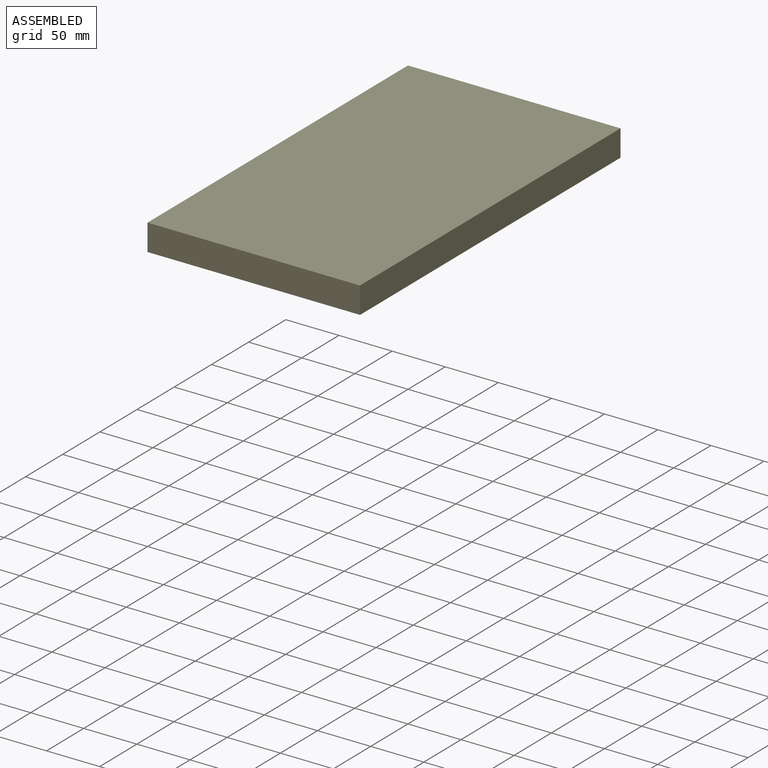
[diagram: assembled view]
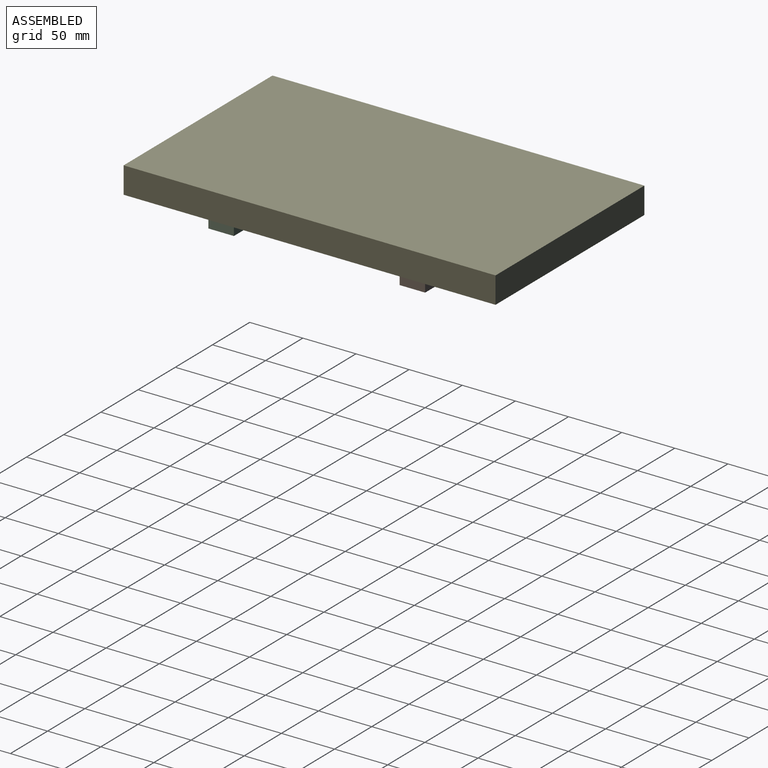
[diagram: assembled view, second angle]
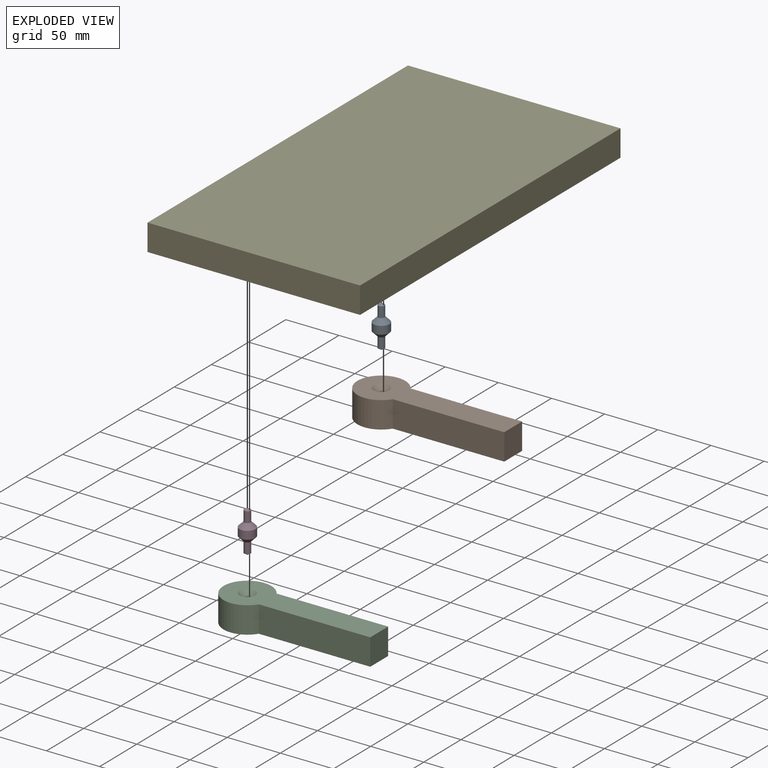
[diagram: exploded view]
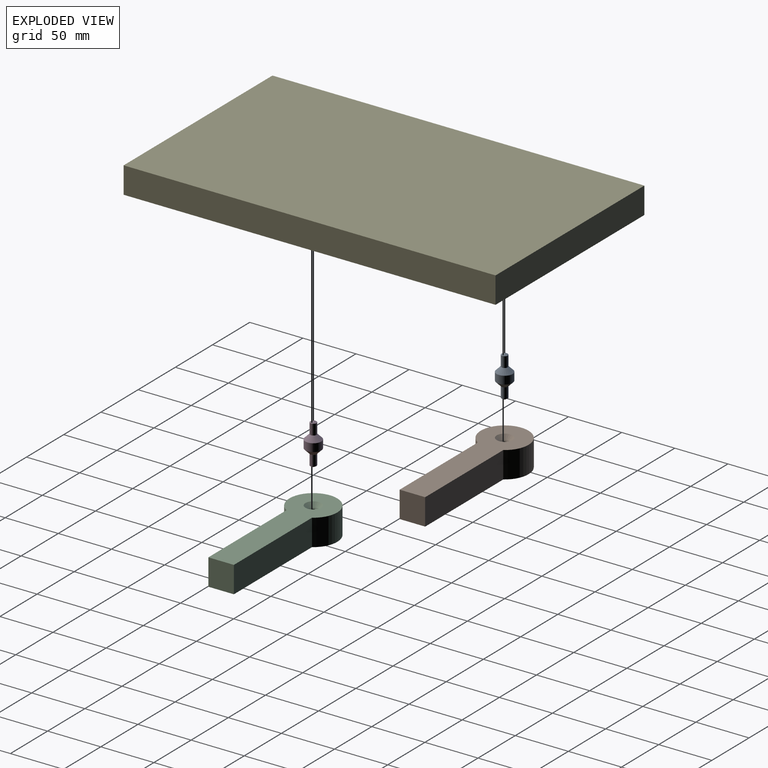
[diagram: exploded view, second angle]
ASSEMBLY  parts=5 mates=6
PART A: 7 faces, bbox 15x15x40.1 mm
  f0: cone r=0mm half-angle=59deg, axis (0,0,1), area 33mm2, adj f1
  f1: cylinder r=3mm len=10mm, axis (0,0,1), area 188.5mm2, adj f0,f2
  f2: cone r=3mm half-angle=45deg, axis (0,0,1), area 209.9mm2, adj f1,f3
  f3: cylinder r=7.5mm len=15mm, axis (0,0,-1), area 353.4mm2, adj f2,f6
  f4: cone r=0mm half-angle=59deg, axis (0,0,-1), area 33mm2, adj f5
  f5: cylinder r=3mm len=10mm, axis (0,0,-1), area 188.5mm2, adj f4,f6
  f6: cone r=3mm half-angle=45deg, axis (0,0,-1), area 209.9mm2, adj f3,f5
PART B: 9 faces, bbox 146.5x45x25 mm
  f0: cylinder r=22.5mm len=45mm, axis (0,0,-1), area 2901.4mm2, adj f1,f3,f4,f5
  f1: plane 104.93x25mm, normal (0,-1,0), area 2623.4mm2, adj f0,f2,f4,f5
  f2: plane 25x24mm, normal (1,0,0), area 600mm2, adj f1,f3,f4,f5
  f3: plane 105x25mm, normal (0,1,0), area 2625mm2, adj f0,f2,f4,f5
  f4: plane 146.5x45mm, normal (0,0,1), area 3876.5mm2, adj f0,f1,f2,f3,f8
  f5: plane 146.5x45mm, normal (0,0,-1), area 4053.3mm2, adj f0,f1,f2,f3
  f6: cone r=0mm half-angle=59deg, axis (0,0,1), area 33mm2, adj f7
  f7: cylinder r=3mm len=10mm, axis (0,0,1), area 188.5mm2, adj f6,f8
  f8: cone r=3mm half-angle=45deg, axis (0,0,1), area 209.9mm2, adj f4,f7
PART C: same geometry as B
PART D: same geometry as A
PART E: 12 faces, bbox 200x350x25 mm
  f0: plane 200x25mm, normal (0,1,0), area 5000mm2, adj f1,f3,f4,f5
  f1: plane 350x25mm, normal (-1,0,0), area 8750mm2, adj f0,f2,f4,f5
  f2: plane 200x25mm, normal (0,-1,0), area 5000mm2, adj f1,f3,f4,f5
  f3: plane 350x25mm, normal (1,0,0), area 8750mm2, adj f0,f2,f4,f5
  f4: plane 350x200mm, normal (0,0,1), area 70000mm2, adj f0,f1,f2,f3
  f5: plane 350x200mm, normal (0,0,-1), area 69646.6mm2, adj f0,f1,f2,f3,f8,f11
  f6: cone r=0mm half-angle=59deg, axis (0,0,-1), area 33mm2, adj f7
  f7: cylinder r=3mm len=10mm, axis (0,0,-1), area 188.5mm2, adj f6,f8
  f8: cone r=3mm half-angle=45deg, axis (0,0,-1), area 209.9mm2, adj f5,f7
  f9: cone r=0mm half-angle=59deg, axis (0,0,-1), area 33mm2, adj f10
  f10: cylinder r=3mm len=10mm, axis (0,0,-1), area 188.5mm2, adj f9,f11
  f11: cone r=3mm half-angle=45deg, axis (0,0,-1), area 209.9mm2, adj f5,f10
PLACE A t=(0,0,7.5)mm
PLACE B rot(axis=(0,0,-1),0deg) t=(0,0,87.5)mm
PLACE C rot(axis=(0,0,-1),0deg) t=(0,-180,87.5)mm
PLACE D rot(axis=(0,0,1),14.6deg) t=(0,-180,7.5)mm
PLACE E at identity fixed
MATE planar D.f0 <-> C.f0  axis (0,0,1) through (0,-180,100)mm
MATE cylindrical C.f0 <-> E.f6  axis (0,0,1) through (0,-180,100)mm
MATE revolute D.f0 <-> E.f6  axis (0,0,1) through (0,-180,100)mm
MATE planar E.f9 <-> B.f0  axis (0,0,-1) through (0,0,100)mm
MATE cylindrical B.f0 <-> A.f0  axis (0,0,1) through (0,0,100)mm
MATE fastened A.f0 <-> E.f9  axis (0,0,1) through (0,0,100)mm
